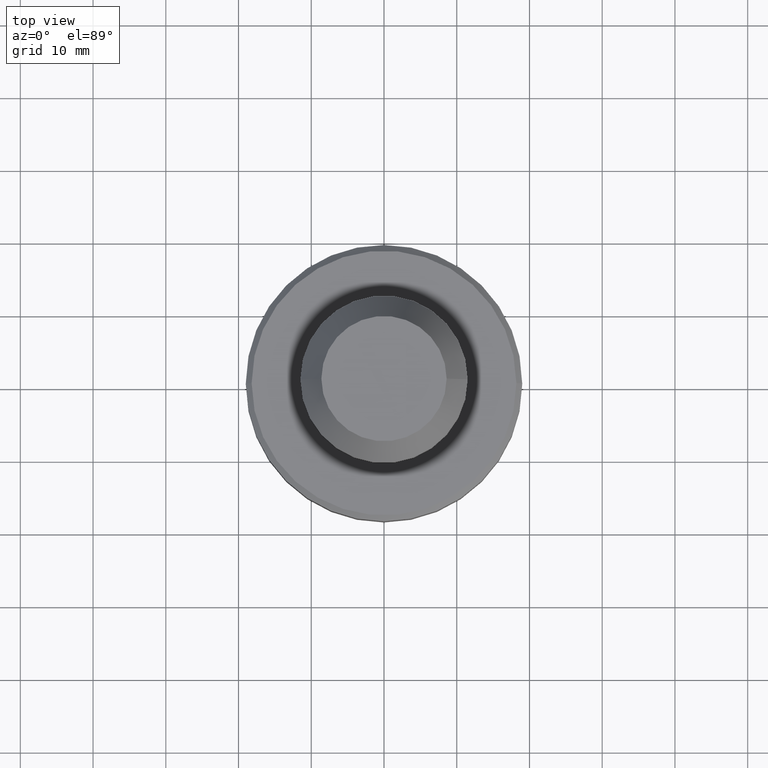
[diagram: clean part render]
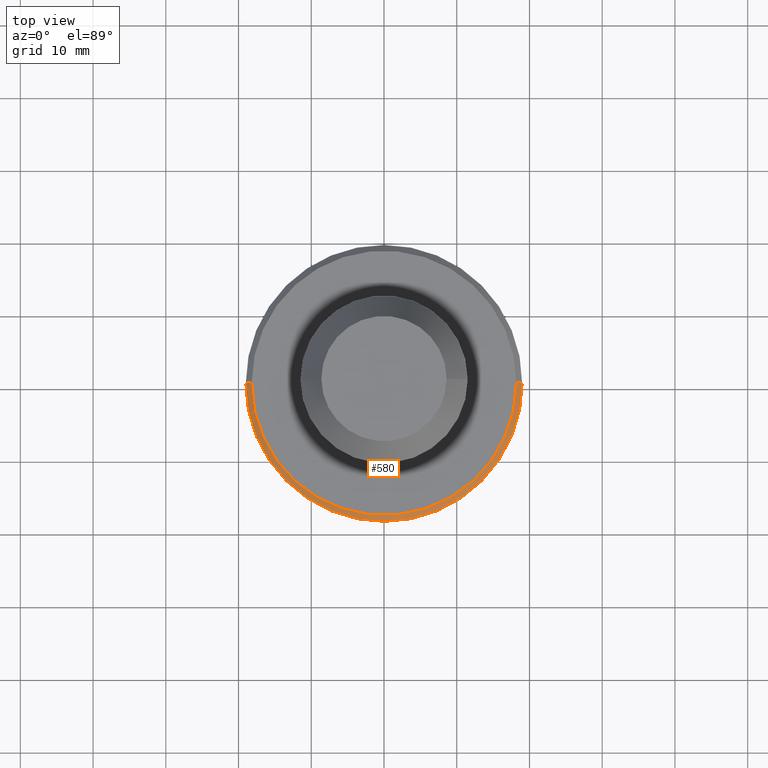
[diagram: same view with one face highlighted and labeled with its STEP entity id]
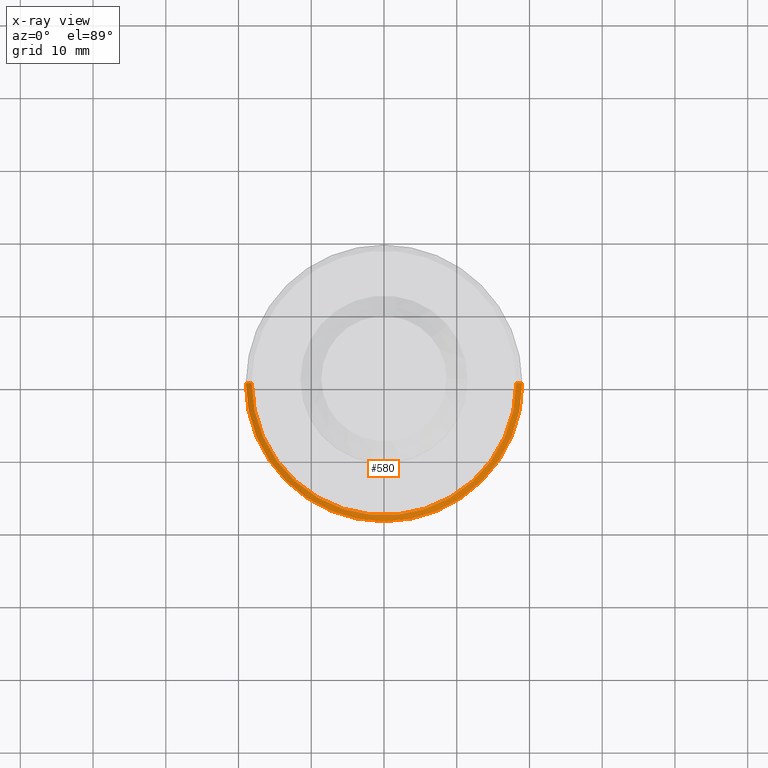
[diagram: x-ray of the same camera — body ghosted, the highlighted face saturated]
A machine part, top view. The second image highlights one B-rep face of the part: STEP entity #580.
The next image is the same camera in x-ray: the body ghosted, the highlighted face saturated — about 0% of this face is hidden behind the body in this view.
In plain terms, the highlighted conical surface has half-angle 45 deg.
Its self-contained STEP definition (entity closure, byte-faithful):
#10 = EDGE_CURVE ( 'NONE', #302, #348, #474, .T. ) ;
#54 = EDGE_CURVE ( 'NONE', #302, #998, #453, .T. ) ;
#83 = EDGE_CURVE ( 'NONE', #998, #835, #415, .T. ) ;
#131 = AXIS2_PLACEMENT_3D ( 'NONE', #848, #1138, #982 ) ;
#175 = VECTOR ( 'NONE', #368, 1000.000000000000100 ) ;
#240 = AXIS2_PLACEMENT_3D ( 'NONE', #350, #956, #450 ) ;
#302 = VERTEX_POINT ( 'NONE', #428 ) ;
#339 = CARTESIAN_POINT ( 'NONE',  ( -19.00000000000000000, 2.326828918379971000E-015, -35.79999999999999000 ) ) ;
#341 = CARTESIAN_POINT ( 'NONE',  ( 19.00000000000000000, 0.0000000000000000000, -35.79999999999999000 ) ) ;
#348 = VERTEX_POINT ( 'NONE', #435 ) ;
#350 = CARTESIAN_POINT ( 'NONE',  ( 0.0000000000000000000, 0.0000000000000000000, -35.79999999999999000 ) ) ;
#368 = DIRECTION ( 'NONE',  ( 0.7071067811865460200, 8.659560562354913100E-017, -0.7071067811865489100 ) ) ;
#380 = CARTESIAN_POINT ( 'NONE',  ( -19.00000000000000000, 0.0000000000000000000, -35.79999999999999000 ) ) ;
#396 = DIRECTION ( 'NONE',  ( 1.000000000000000000, 0.0000000000000000000, 0.0000000000000000000 ) ) ;
#399 = CONICAL_SURFACE ( 'NONE', #131, 19.00000000000000000, 0.7853981633974461700 ) ;
#415 = CIRCLE ( 'NONE', #240, 19.00000000000000000 ) ;
#423 = VECTOR ( 'NONE', #1000, 1000.000000000000100 ) ;
#428 = CARTESIAN_POINT ( 'NONE',  ( -18.19999999999998900, 0.0000000000000000000, -34.99999999999997900 ) ) ;
#435 = CARTESIAN_POINT ( 'NONE',  ( 18.19999999999998900, 2.277843046414076000E-015, -34.99999999999997900 ) ) ;
#450 = DIRECTION ( 'NONE',  ( 1.000000000000000000, 0.0000000000000000000, 0.0000000000000000000 ) ) ;
#453 = LINE ( 'NONE', #380, #423 ) ;
#474 = CIRCLE ( 'NONE', #823, 18.19999999999998900 ) ;
#580 = ADVANCED_FACE ( 'NONE', ( #1094 ), #399, .T. ) ;
#740 = DIRECTION ( 'NONE',  ( -0.0000000000000000000, -0.0000000000000000000, 1.000000000000000000 ) ) ;
#755 = ORIENTED_EDGE ( 'NONE', *, *, #83, .T. ) ;
#799 = ORIENTED_EDGE ( 'NONE', *, *, #1086, .F. ) ;
#802 = CARTESIAN_POINT ( 'NONE',  ( 19.00000000000000000, 2.326828918379971000E-015, -35.79999999999999000 ) ) ;
#823 = AXIS2_PLACEMENT_3D ( 'NONE', #1011, #740, #396 ) ;
#835 = VERTEX_POINT ( 'NONE', #341 ) ;
#848 = CARTESIAN_POINT ( 'NONE',  ( 0.0000000000000000000, 0.0000000000000000000, -35.79999999999999000 ) ) ;
#899 = ORIENTED_EDGE ( 'NONE', *, *, #54, .T. ) ;
#937 = ORIENTED_EDGE ( 'NONE', *, *, #10, .F. ) ;
#956 = DIRECTION ( 'NONE',  ( -0.0000000000000000000, -0.0000000000000000000, 1.000000000000000000 ) ) ;
#982 = DIRECTION ( 'NONE',  ( -1.000000000000000000, 0.0000000000000000000, 0.0000000000000000000 ) ) ;
#998 = VERTEX_POINT ( 'NONE', #339 ) ;
#1000 = DIRECTION ( 'NONE',  ( -0.7071067811865460200, 0.0000000000000000000, -0.7071067811865489100 ) ) ;
#1011 = CARTESIAN_POINT ( 'NONE',  ( 0.0000000000000000000, 0.0000000000000000000, -34.99999999999997900 ) ) ;
#1086 = EDGE_CURVE ( 'NONE', #348, #835, #1113, .T. ) ;
#1094 = FACE_OUTER_BOUND ( 'NONE', #1116, .T. ) ;
#1113 = LINE ( 'NONE', #802, #175 ) ;
#1116 = EDGE_LOOP ( 'NONE', ( #799, #937, #899, #755 ) ) ;
#1138 = DIRECTION ( 'NONE',  ( 0.0000000000000000000, 0.0000000000000000000, -1.000000000000000000 ) ) ;